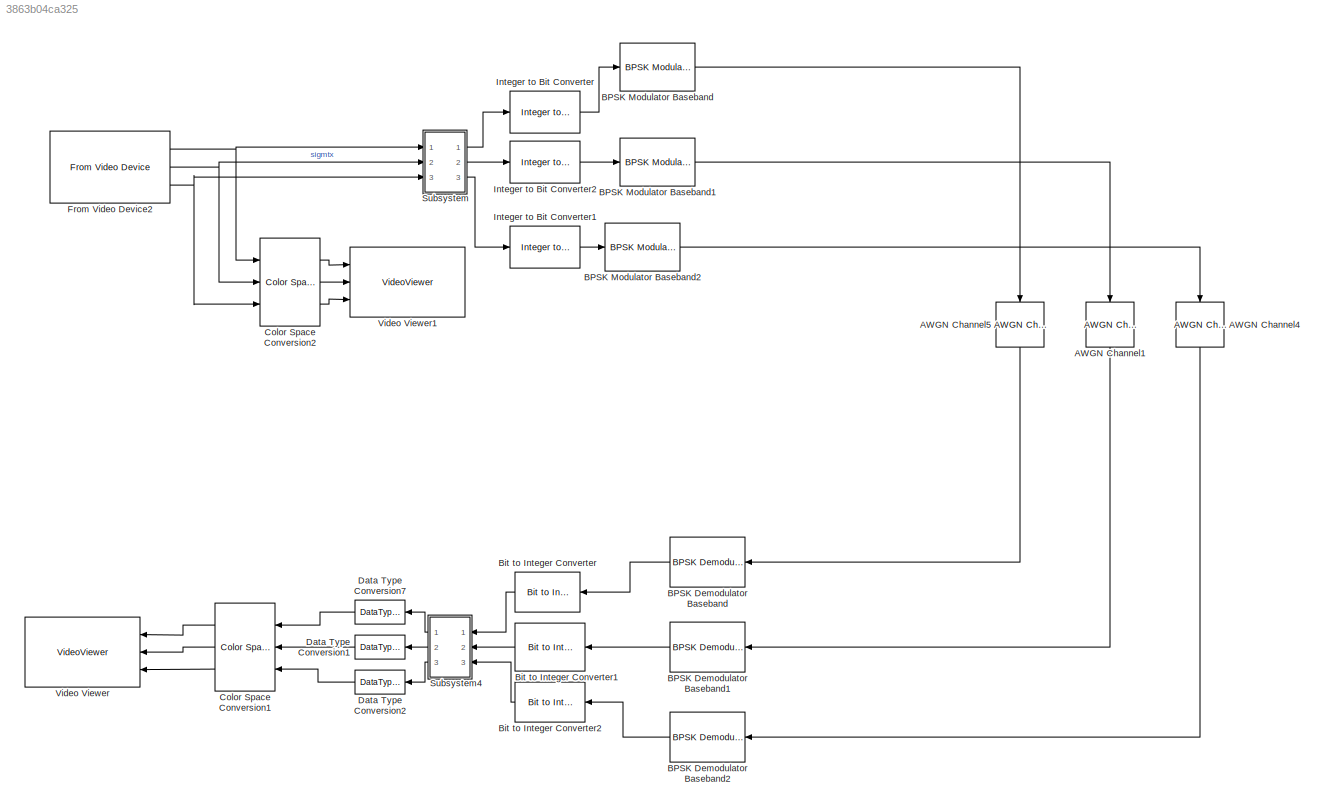
MODEL slx_3863b04ca325
KIND model
CONFIG AbsTol = auto
CONFIG EnableMultiTasking = off
CONFIG FixedStep = auto
CONFIG MaxStep = auto
CONFIG MinStep = auto
CONFIG PreLoadFcn = n=8; %Number of quantization bits
CONFIG RelTol = 1e-3
CONFIG SampleTimeConstraint = Unconstrained
CONFIG SolverName = FixedStepDiscrete
CONFIG StartTime = 0.0
CONFIG StopTime = 100
BLOCK [Reference] AWGN Channel1  REF=commchan3/AWGN
Channel
  NameLocation = left
  Ports = [1, 1]
  SourceBlock = commchan3/AWGN\nChannel
  SourceProductBaseCode = CM
  SourceType = AWGN Channel
  UserDataPersistent = on
BLOCK [Reference] AWGN Channel4  REF=commchan3/AWGN
Channel
  NameLocation = left
  Ports = [1, 1]
  SourceBlock = commchan3/AWGN\nChannel
  SourceProductBaseCode = CM
  SourceType = AWGN Channel
  UserDataPersistent = on
BLOCK [Reference] AWGN Channel5  REF=commchan3/AWGN
Channel
  NameLocation = left
  Ports = [1, 1]
  SourceBlock = commchan3/AWGN\nChannel
  SourceProductBaseCode = CM
  SourceType = AWGN Channel
  UserDataPersistent = on
BLOCK [Reference] BPSK Demodulator Baseband  REF=commdigbbndpm3/BPSK
Demodulator
Baseband
  NameLocation = top
  Ports = [1, 1]
  SourceBlock = commdigbbndpm3/BPSK\nDemodulator\nBaseband
  SourceProductBaseCode = CM
  SourceType = BPSK Demodulator Baseband
BLOCK [Reference] BPSK Demodulator Baseband1  REF=commdigbbndpm3/BPSK
Demodulator
Baseband
  NameLocation = top
  Ports = [1, 1]
  SourceBlock = commdigbbndpm3/BPSK\nDemodulator\nBaseband
  SourceProductBaseCode = CM
  SourceType = BPSK Demodulator Baseband
BLOCK [Reference] BPSK Demodulator Baseband2  REF=commdigbbndpm3/BPSK
Demodulator
Baseband
  NameLocation = top
  Ports = [1, 1]
  SourceBlock = commdigbbndpm3/BPSK\nDemodulator\nBaseband
  SourceProductBaseCode = CM
  SourceType = BPSK Demodulator Baseband
BLOCK [Reference] BPSK Modulator Baseband  REF=commdigbbndpm3/BPSK
Modulator
Baseband
  Ports = [1, 1]
  SourceBlock = commdigbbndpm3/BPSK\nModulator\nBaseband
  SourceProductBaseCode = CM
  SourceType = BPSK Modulator Baseband
BLOCK [Reference] BPSK Modulator Baseband1  REF=commdigbbndpm3/BPSK
Modulator
Baseband
  Ports = [1, 1]
  SourceBlock = commdigbbndpm3/BPSK\nModulator\nBaseband
  SourceProductBaseCode = CM
  SourceType = BPSK Modulator Baseband
BLOCK [Reference] BPSK Modulator Baseband2  REF=commdigbbndpm3/BPSK
Modulator
Baseband
  Ports = [1, 1]
  SourceBlock = commdigbbndpm3/BPSK\nModulator\nBaseband
  SourceProductBaseCode = CM
  SourceType = BPSK Modulator Baseband
BLOCK [Reference] Bit to Integer Converter  REF=commutil2/Bit to Integer
Converter
  NameLocation = top
  Ports = [1, 1]
  SourceBlock = commutil2/Bit to Integer\nConverter
  SourceProductBaseCode = CM
  SourceType = Bit to Integer Converter
BLOCK [Reference] Bit to Integer Converter1  REF=commutil2/Bit to Integer
Converter
  NameLocation = top
  Ports = [1, 1]
  SourceBlock = commutil2/Bit to Integer\nConverter
  SourceProductBaseCode = CM
  SourceType = Bit to Integer Converter
BLOCK [Reference] Bit to Integer Converter2  REF=commutil2/Bit to Integer
Converter
  NameLocation = top
  Ports = [1, 1]
  SourceBlock = commutil2/Bit to Integer\nConverter
  SourceProductBaseCode = CM
  SourceType = Bit to Integer Converter
BLOCK [Reference] Color Space Conversion1  REF=visionconversions/Color Space
 Conversion
  NameLocation = top
  Ports = [3, 3]
  SourceBlock = visionconversions/Color Space\n Conversion
  SourceProductBaseCode = VP
  SourceType = Color Space Conversion
BLOCK [Reference] Color Space Conversion2  REF=visionconversions/Color Space
 Conversion
  Ports = [3, 3]
  SourceBlock = visionconversions/Color Space\n Conversion
  SourceProductBaseCode = VP
  SourceType = Color Space Conversion
BLOCK [DataTypeConversion] Data Type Conversion1
  NameLocation = top
  OutDataTypeStr = uint8
  RndMeth = Floor
  SaturateOnIntegerOverflow = off
BLOCK [DataTypeConversion] Data Type Conversion2
  NameLocation = top
  OutDataTypeStr = uint8
  RndMeth = Floor
  SaturateOnIntegerOverflow = off
BLOCK [DataTypeConversion] Data Type Conversion7
  NameLocation = top
  OutDataTypeStr = uint8
  RndMeth = Floor
  SaturateOnIntegerOverflow = off
BLOCK [Reference] From Video Device2  REF=imaqlib/From Video Device
  Ports = [0, 3]
  SourceBlock = imaqlib/From Video Device
  SourceProductBaseCode = IA
  SourceType = From Video Device
  UserDataPersistent = on
BLOCK [Reference] Integer to Bit Converter  REF=commutil2/Integer to Bit
Converter
  Ports = [1, 1]
  SourceBlock = commutil2/Integer to Bit\nConverter
  SourceProductBaseCode = CM
  SourceType = Integer to Bit Converter
BLOCK [Reference] Integer to Bit Converter1  REF=commutil2/Integer to Bit
Converter
  Ports = [1, 1]
  SourceBlock = commutil2/Integer to Bit\nConverter
  SourceProductBaseCode = CM
  SourceType = Integer to Bit Converter
BLOCK [Reference] Integer to Bit Converter2  REF=commutil2/Integer to Bit
Converter
  Ports = [1, 1]
  SourceBlock = commutil2/Integer to Bit\nConverter
  SourceProductBaseCode = CM
  SourceType = Integer to Bit Converter
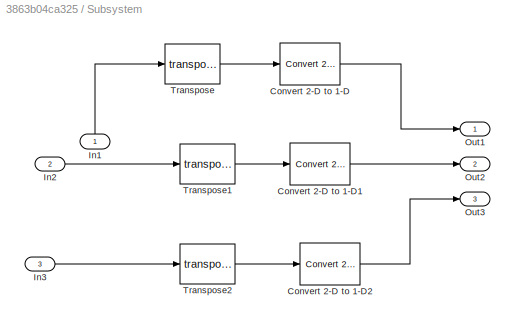
BLOCK [SubSystem] Subsystem
  Ports = [3, 3]
  RequestExecContextInheritance = off
BLOCK [Reference] Subsystem/Convert 2-D to 1-D  REF=dspsigattribs/Convert 2-D to 1-D
  Ports = [1, 1]
  SourceBlock = dspsigattribs/Convert 2-D to 1-D
  SourceProductBaseCode = DS
  SourceType = Convert 2-D to 1-D
BLOCK [Reference] Subsystem/Convert 2-D to 1-D1  REF=dspsigattribs/Convert 2-D to 1-D
  Ports = [1, 1]
  SourceBlock = dspsigattribs/Convert 2-D to 1-D
  SourceProductBaseCode = DS
  SourceType = Convert 2-D to 1-D
BLOCK [Reference] Subsystem/Convert 2-D to 1-D2  REF=dspsigattribs/Convert 2-D to 1-D
  Ports = [1, 1]
  SourceBlock = dspsigattribs/Convert 2-D to 1-D
  SourceProductBaseCode = DS
  SourceType = Convert 2-D to 1-D
BLOCK [Inport] Subsystem/In1
  NameLocation = right
BLOCK [Inport] Subsystem/In2
  Port = 2
BLOCK [Inport] Subsystem/In3
  Port = 3
BLOCK [Outport] Subsystem/Out1
BLOCK [Outport] Subsystem/Out2
  Port = 2
BLOCK [Outport] Subsystem/Out3
  Port = 3
BLOCK [Math] Subsystem/Transpose
  Operator = transpose
  Ports = [1, 1]
  SignedPower = on
BLOCK [Math] Subsystem/Transpose1
  Operator = transpose
  Ports = [1, 1]
  SignedPower = on
BLOCK [Math] Subsystem/Transpose2
  Operator = transpose
  Ports = [1, 1]
  SignedPower = on
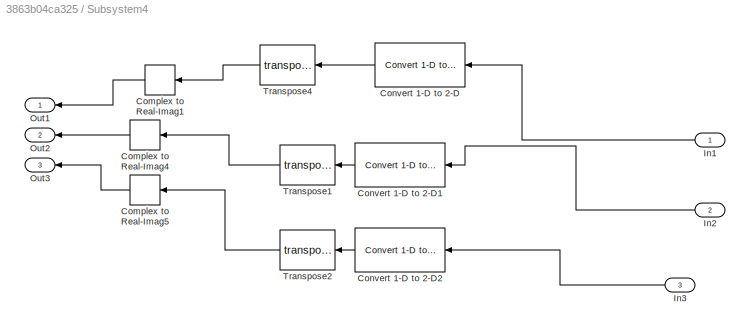
BLOCK [SubSystem] Subsystem4
  NameLocation = top
  Ports = [3, 3]
  RequestExecContextInheritance = off
BLOCK [ComplexToRealImag] Subsystem4/Complex to Real-Imag1
  NameLocation = top
  Output = Real
  Ports = [1, 1]
BLOCK [ComplexToRealImag] Subsystem4/Complex to Real-Imag4
  NameLocation = top
  Output = Real
  Ports = [1, 1]
BLOCK [ComplexToRealImag] Subsystem4/Complex to Real-Imag5
  NameLocation = top
  Output = Real
  Ports = [1, 1]
BLOCK [Reference] Subsystem4/Convert 1-D to 2-D  REF=dspsigattribs/Convert 1-D to 2-D
  NameLocation = top
  Ports = [1, 1]
  SourceBlock = dspsigattribs/Convert 1-D to 2-D
  SourceProductBaseCode = DS
  SourceType = Convert 1-D to 2-D
BLOCK [Reference] Subsystem4/Convert 1-D to 2-D1  REF=dspsigattribs/Convert 1-D to 2-D
  NameLocation = top
  Ports = [1, 1]
  SourceBlock = dspsigattribs/Convert 1-D to 2-D
  SourceProductBaseCode = DS
  SourceType = Convert 1-D to 2-D
BLOCK [Reference] Subsystem4/Convert 1-D to 2-D2  REF=dspsigattribs/Convert 1-D to 2-D
  NameLocation = top
  Ports = [1, 1]
  SourceBlock = dspsigattribs/Convert 1-D to 2-D
  SourceProductBaseCode = DS
  SourceType = Convert 1-D to 2-D
BLOCK [Inport] Subsystem4/In1
BLOCK [Inport] Subsystem4/In2
  Port = 2
BLOCK [Inport] Subsystem4/In3
  Port = 3
BLOCK [Outport] Subsystem4/Out1
BLOCK [Outport] Subsystem4/Out2
  Port = 2
BLOCK [Outport] Subsystem4/Out3
  Port = 3
BLOCK [Math] Subsystem4/Transpose1
  NameLocation = top
  Operator = transpose
  OutputSignalType = complex
  Ports = [1, 1]
  SignedPower = on
BLOCK [Math] Subsystem4/Transpose2
  NameLocation = top
  Operator = transpose
  OutputSignalType = complex
  Ports = [1, 1]
  SignedPower = on
BLOCK [Math] Subsystem4/Transpose4
  NameLocation = top
  Operator = transpose
  OutputSignalType = complex
  Ports = [1, 1]
  SignedPower = on
BLOCK [VideoViewer] Video Viewer
  FigPos = [502 1000 410 300]
  NameLocation = top
  Ports = [3]
  ScopeSpecificationString = vipscopes.VideoViewerScopeCfg('CurrentConfiguration', extmgr.ConfigurationSet(extmgr.Configuration('Core','General UI',true),extmgr.Configuration('Core','Source UI',true),extmgr.Configuration('Sources','WiredSimulink',true),extmgr.Configuration('Visuals','Video',true,'AxesProperties',struct('Color',[1 1 1],'XColor',[0.15 0.15 0.15],'YColor',[0.15 0.15 0.15],'ZColor',[0.15 0.15 0.15],'XGrid','off',...<+607ch>
  colormapValue = gray(256)
  imagePorts = separate color signals
BLOCK [VideoViewer] Video Viewer1
  FigPos = [65 1007 410 300]
  Ports = [3]
  ScopeSpecificationString = vipscopes.VideoViewerScopeCfg('CurrentConfiguration', extmgr.ConfigurationSet(extmgr.Configuration('Core','General UI',true),extmgr.Configuration('Core','Source UI',true),extmgr.Configuration('Sources','WiredSimulink',true),extmgr.Configuration('Visuals','Video',true,'AxesProperties',struct('Color',[1 1 1],'XColor',[0.15 0.15 0.15],'YColor',[0.15 0.15 0.15],'ZColor',[0.15 0.15 0.15],'XGrid','off',...<+606ch>
  colormapValue = gray(256)
  imagePorts = separate color signals
LINE AWGN Channel1:1 -> BPSK Demodulator Baseband1:1
LINE AWGN Channel4:1 -> BPSK Demodulator Baseband2:1
LINE AWGN Channel5:1 -> BPSK Demodulator Baseband:1
LINE BPSK Demodulator Baseband1:1 -> Bit to Integer Converter1:1
LINE BPSK Demodulator Baseband2:1 -> Bit to Integer Converter2:1
LINE BPSK Demodulator Baseband:1 -> Bit to Integer Converter:1
LINE BPSK Modulator Baseband1:1 -> AWGN Channel1:1
LINE BPSK Modulator Baseband2:1 -> AWGN Channel4:1
LINE BPSK Modulator Baseband:1 -> AWGN Channel5:1
LINE Bit to Integer Converter1:1 -> Subsystem4:2
LINE Bit to Integer Converter2:1 -> Subsystem4:3
LINE Bit to Integer Converter:1 -> Subsystem4:1
LINE Color Space Conversion1:1 -> Video Viewer:1
LINE Color Space Conversion1:2 -> Video Viewer:2
LINE Color Space Conversion1:3 -> Video Viewer:3
LINE Color Space Conversion2:1 -> Video Viewer1:1
LINE Color Space Conversion2:2 -> Video Viewer1:2
LINE Color Space Conversion2:3 -> Video Viewer1:3
LINE Data Type Conversion1:1 -> Color Space Conversion1:2
LINE Data Type Conversion2:1 -> Color Space Conversion1:3
LINE Data Type Conversion7:1 -> Color Space Conversion1:1
NET From Video Device2:1 -> Color Space Conversion2:1, Subsystem:1
NET From Video Device2:2 -> Color Space Conversion2:2, Subsystem:2
NET From Video Device2:3 -> Color Space Conversion2:3, Subsystem:3
LINE Integer to Bit Converter1:1 -> BPSK Modulator Baseband2:1
LINE Integer to Bit Converter2:1 -> BPSK Modulator Baseband1:1
LINE Integer to Bit Converter:1 -> BPSK Modulator Baseband:1
LINE Subsystem/Convert 2-D to 1-D1:1 -> Subsystem/Out2:1
LINE Subsystem/Convert 2-D to 1-D2:1 -> Subsystem/Out3:1
LINE Subsystem/Convert 2-D to 1-D:1 -> Subsystem/Out1:1
LINE Subsystem/In1:1 -> Subsystem/Transpose:1
LINE Subsystem/In2:1 -> Subsystem/Transpose1:1
LINE Subsystem/In3:1 -> Subsystem/Transpose2:1
LINE Subsystem/Transpose1:1 -> Subsystem/Convert 2-D to 1-D1:1
LINE Subsystem/Transpose2:1 -> Subsystem/Convert 2-D to 1-D2:1
LINE Subsystem/Transpose:1 -> Subsystem/Convert 2-D to 1-D:1
LINE Subsystem4/Complex to Real-Imag1:1 -> Subsystem4/Out1:1
LINE Subsystem4/Complex to Real-Imag4:1 -> Subsystem4/Out2:1
LINE Subsystem4/Complex to Real-Imag5:1 -> Subsystem4/Out3:1
LINE Subsystem4/Convert 1-D to 2-D1:1 -> Subsystem4/Transpose1:1
LINE Subsystem4/Convert 1-D to 2-D2:1 -> Subsystem4/Transpose2:1
LINE Subsystem4/Convert 1-D to 2-D:1 -> Subsystem4/Transpose4:1
LINE Subsystem4/In1:1 -> Subsystem4/Convert 1-D to 2-D:1
LINE Subsystem4/In2:1 -> Subsystem4/Convert 1-D to 2-D1:1
LINE Subsystem4/In3:1 -> Subsystem4/Convert 1-D to 2-D2:1
LINE Subsystem4/Transpose1:1 -> Subsystem4/Complex to Real-Imag4:1
LINE Subsystem4/Transpose2:1 -> Subsystem4/Complex to Real-Imag5:1
LINE Subsystem4/Transpose4:1 -> Subsystem4/Complex to Real-Imag1:1
LINE Subsystem4:1 -> Data Type Conversion7:1
LINE Subsystem4:2 -> Data Type Conversion1:1
LINE Subsystem4:3 -> Data Type Conversion2:1
LINE Subsystem:1 -> Integer to Bit Converter:1
LINE Subsystem:2 -> Integer to Bit Converter2:1
LINE Subsystem:3 -> Integer to Bit Converter1:1
note: NET lines group one-source signal fan-out (src -> all destinations, sorted); 1:1 wires keep LINE
